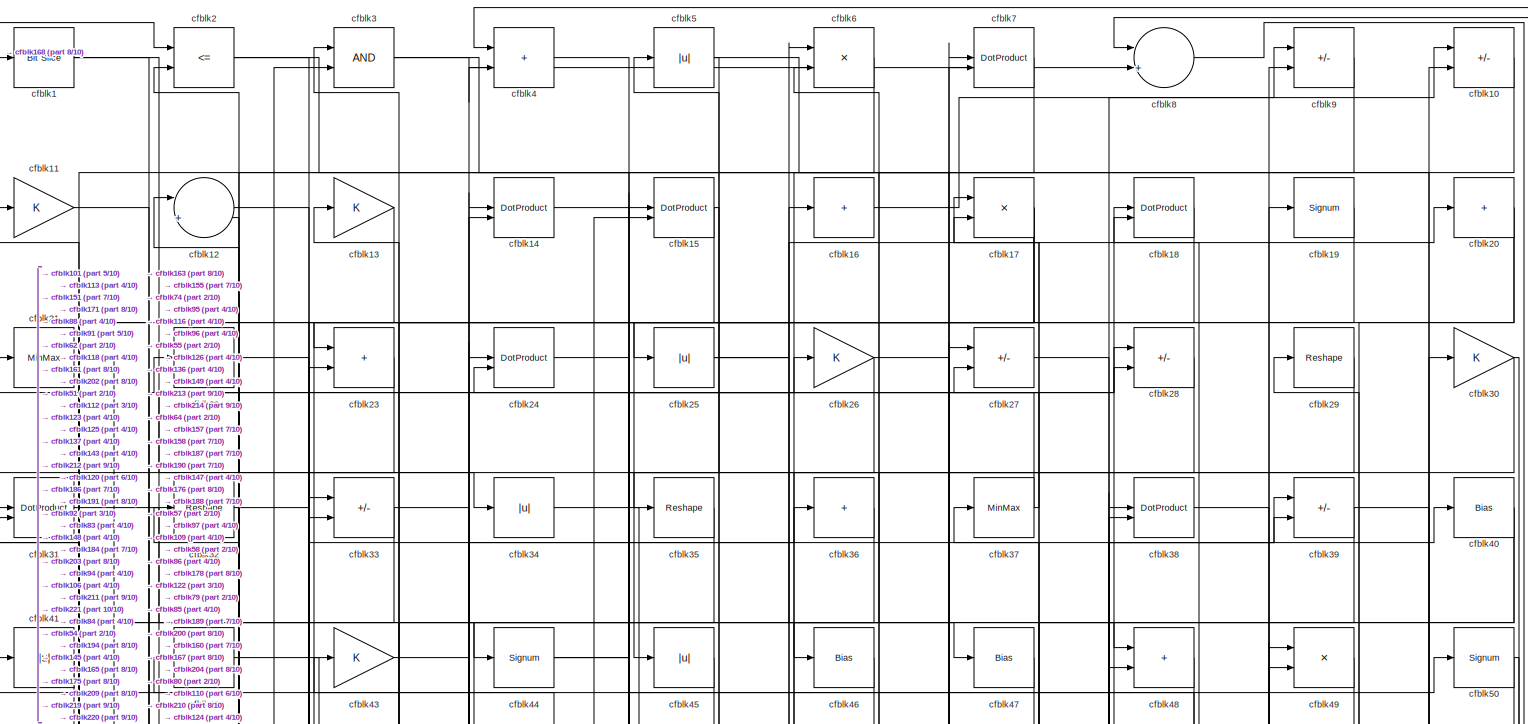
[diagram: root canvas - part 1/10, full width, top band]
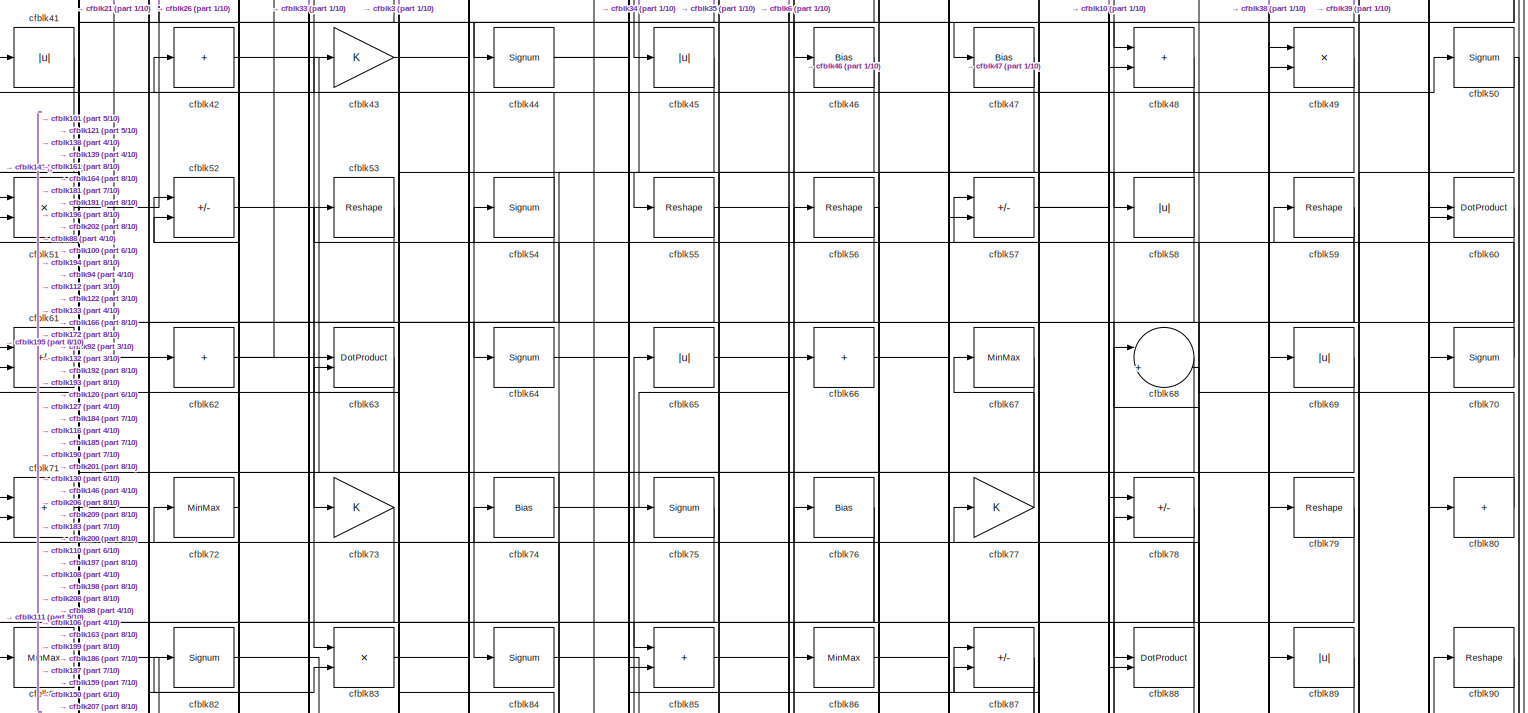
[diagram: root canvas - part 2/10, full width, top band]
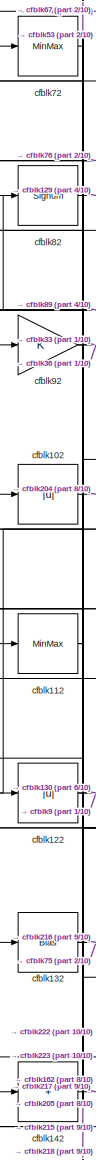
[diagram: root canvas - part 3/10, middle left region]
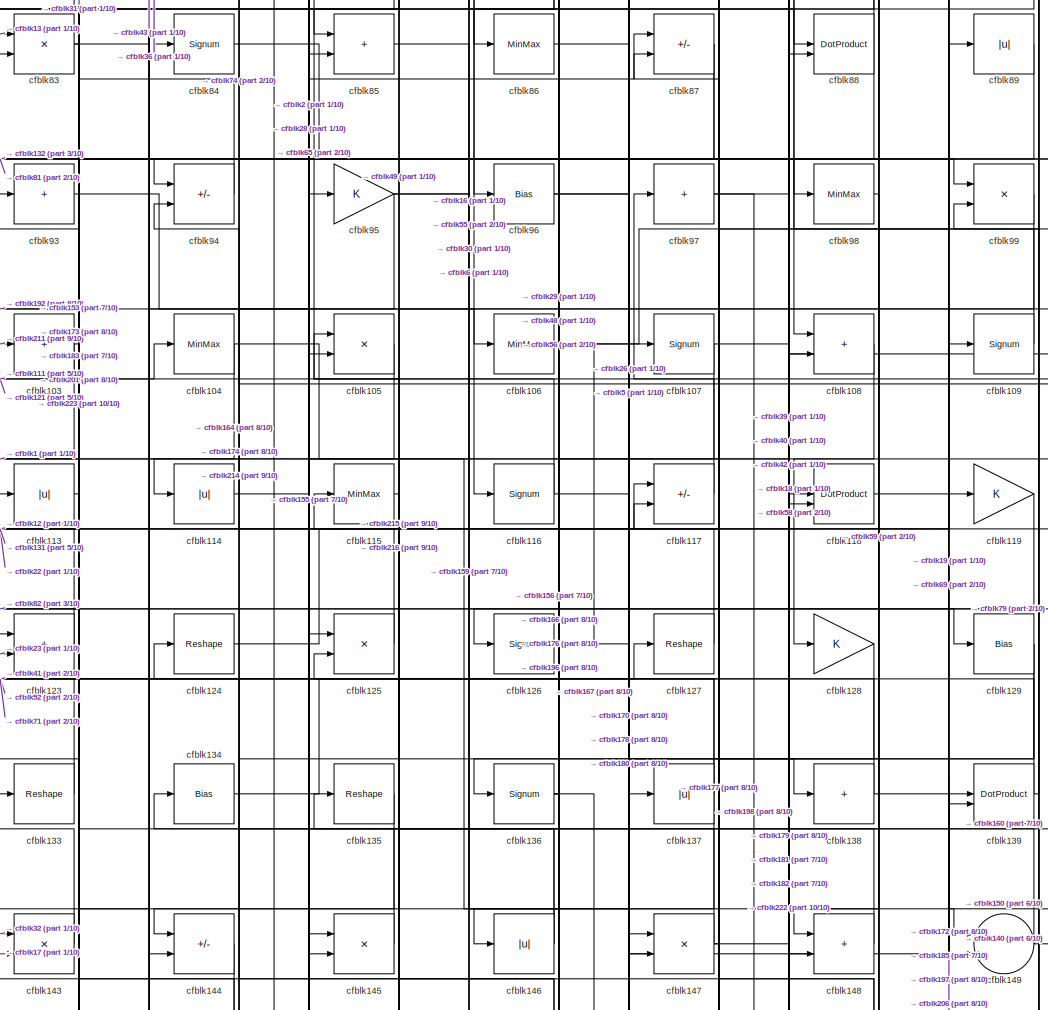
[diagram: root canvas - part 4/10, central region]
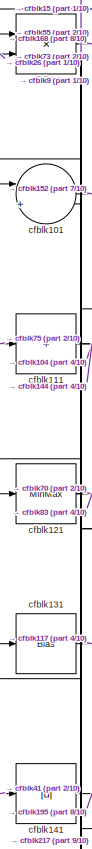
[diagram: root canvas - part 5/10, middle left region]
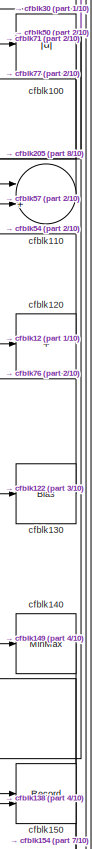
[diagram: root canvas - part 6/10, middle right region]
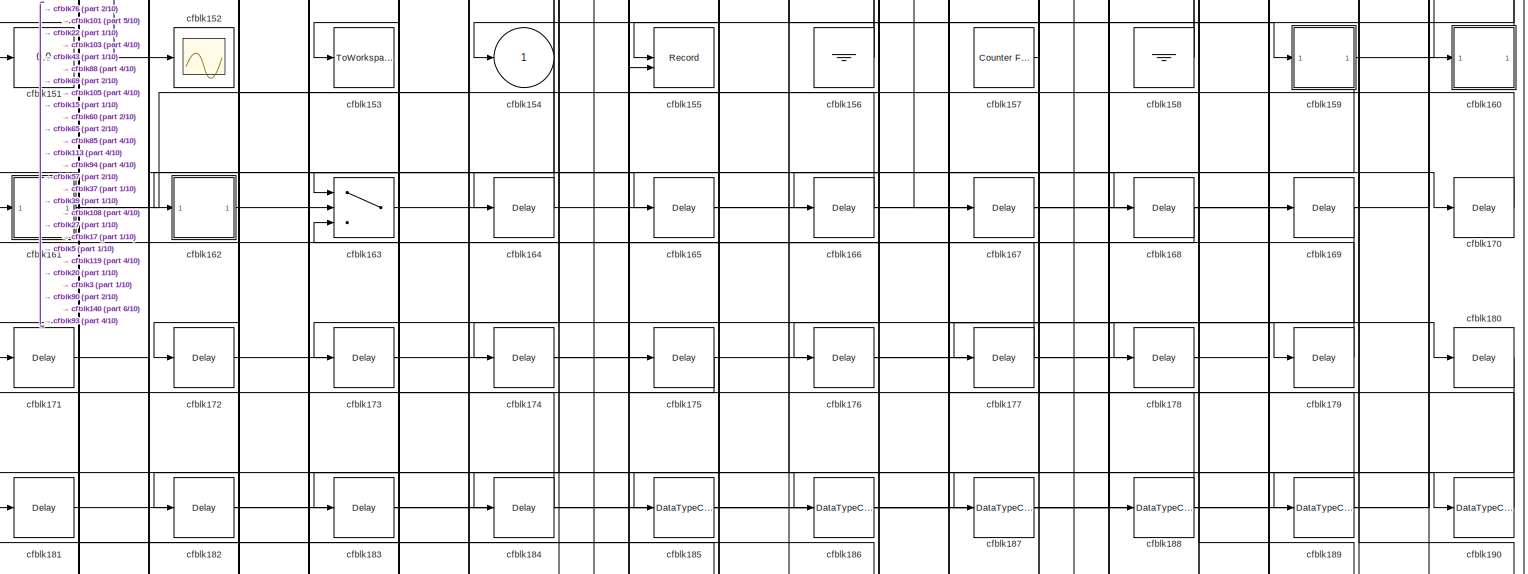
[diagram: root canvas - part 7/10, full width, bottom band]
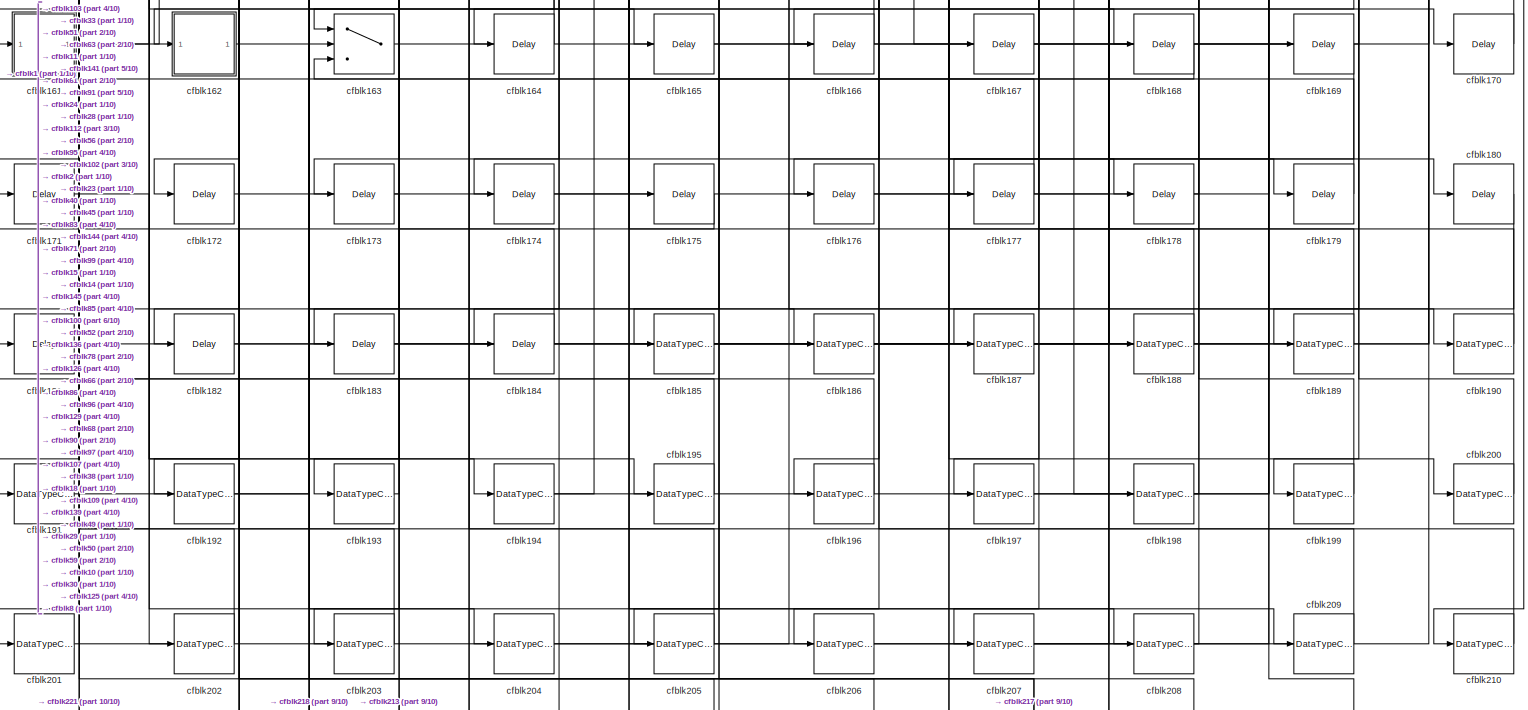
[diagram: root canvas - part 8/10, full width, bottom band]
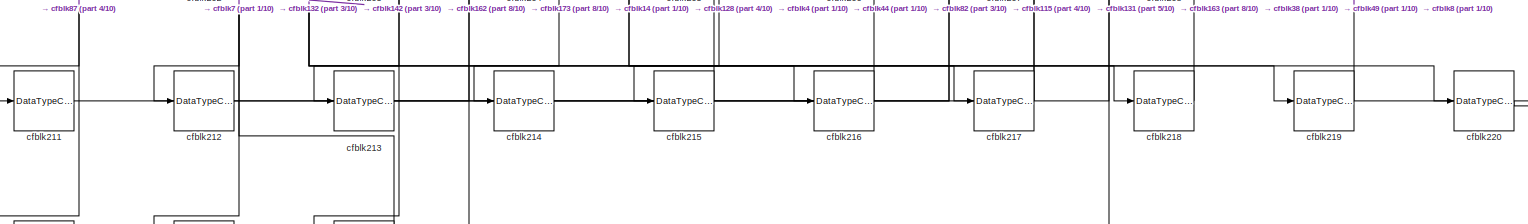
[diagram: root canvas - part 9/10, full width, bottom band]
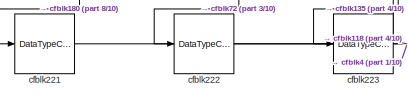
[diagram: root canvas - part 10/10, bottom left region]
MODEL slx_09137ad421bf
KIND model
CONFIG AbsTol = auto
CONFIG EnableMultiTasking = off
CONFIG FixedStep = auto
CONFIG MaxStep = auto
CONFIG MinStep = auto
CONFIG RelTol = 1e-3
CONFIG SampleTimeConstraint = Unconstrained
CONFIG SolverName = VariableStepAuto
CONFIG StartTime = 0.0
CONFIG StopTime = 10.0
BLOCK [Reference] cfblk1  REF=hdlsllib/Logic and Bit
Operations/Bit Slice
  SourceBlock = hdlsllib/Logic and Bit\nOperations/Bit Slice
  SourceType = Bit Slice
BLOCK [Sum] cfblk10
  IconShape = rectangular
  Inputs = +-
BLOCK [Abs] cfblk100
  SaturateOnIntegerOverflow = off
BLOCK [Sum] cfblk101
  Inputs = |++
BLOCK [Abs] cfblk102
  SaturateOnIntegerOverflow = off
BLOCK [Sum] cfblk103
  IconShape = rectangular
  Inputs = +
BLOCK [MinMax] cfblk104
BLOCK [Product] cfblk105
  Inputs = */
  RndMeth = Zero
  SaturateOnIntegerOverflow = on
BLOCK [MinMax] cfblk106
BLOCK [Signum] cfblk107
BLOCK [Sum] cfblk108
  IconShape = rectangular
BLOCK [Signum] cfblk109
BLOCK [Gain] cfblk11
BLOCK [Sum] cfblk110
  Inputs = |++
BLOCK [Sum] cfblk111
  IconShape = rectangular
  Inputs = +
BLOCK [MinMax] cfblk112
BLOCK [Abs] cfblk113
  SaturateOnIntegerOverflow = off
BLOCK [Abs] cfblk114
  SaturateOnIntegerOverflow = off
BLOCK [MinMax] cfblk115
BLOCK [Signum] cfblk116
BLOCK [Sum] cfblk117
  IconShape = rectangular
  Inputs = +-
BLOCK [DotProduct] cfblk118
  OutDataTypeStr = Inherit: Inherit via internal rule
BLOCK [Gain] cfblk119
BLOCK [Sum] cfblk12
  Inputs = |++
BLOCK [Sum] cfblk120
  IconShape = rectangular
  Inputs = +
BLOCK [MinMax] cfblk121
BLOCK [Abs] cfblk122
  SaturateOnIntegerOverflow = off
BLOCK [Sum] cfblk123
  IconShape = rectangular
BLOCK [Reshape] cfblk124
BLOCK [Product] cfblk125
  Inputs = */
  RndMeth = Zero
  SaturateOnIntegerOverflow = on
BLOCK [Signum] cfblk126
BLOCK [Reshape] cfblk127
BLOCK [Gain] cfblk128
BLOCK [Bias] cfblk129
  Bias = 0.0
  SaturateOnIntegerOverflow = off
BLOCK [Gain] cfblk13
BLOCK [Bias] cfblk130
  Bias = 0.0
  SaturateOnIntegerOverflow = off
BLOCK [Bias] cfblk131
  Bias = 0.0
  SaturateOnIntegerOverflow = off
BLOCK [Bias] cfblk132
  Bias = 0.0
  SaturateOnIntegerOverflow = off
BLOCK [Reshape] cfblk133
BLOCK [Bias] cfblk134
  Bias = 0.0
  SaturateOnIntegerOverflow = off
BLOCK [Reshape] cfblk135
BLOCK [Signum] cfblk136
BLOCK [Abs] cfblk137
  SaturateOnIntegerOverflow = off
BLOCK [Sum] cfblk138
  IconShape = rectangular
  Inputs = +
BLOCK [DotProduct] cfblk139
  OutDataTypeStr = Inherit: Inherit via internal rule
BLOCK [DotProduct] cfblk14
  OutDataTypeStr = Inherit: Inherit via internal rule
BLOCK [MinMax] cfblk140
BLOCK [Abs] cfblk141
  SaturateOnIntegerOverflow = off
BLOCK [Sum] cfblk142
  IconShape = rectangular
  Inputs = +
BLOCK [Product] cfblk143
  Inputs = */
  RndMeth = Zero
  SaturateOnIntegerOverflow = on
BLOCK [Sum] cfblk144
  IconShape = rectangular
  Inputs = +-
BLOCK [Product] cfblk145
  Inputs = */
  RndMeth = Zero
  SaturateOnIntegerOverflow = on
BLOCK [Abs] cfblk146
  SaturateOnIntegerOverflow = off
BLOCK [Product] cfblk147
  Inputs = */
  RndMeth = Zero
  SaturateOnIntegerOverflow = on
BLOCK [Sum] cfblk148
  IconShape = rectangular
BLOCK [Sum] cfblk149
  Inputs = |++
BLOCK [DotProduct] cfblk15
  OutDataTypeStr = Inherit: Inherit via internal rule
BLOCK [Record] cfblk150
  CompatibilityTag = XY
  FileSettingsInternal = {"entries":[{"content":{"excelSettings":{"content":{},"type":"Streamout.ExcelSettings"}},"type":"Streamout.FileSettingStorage","uuid":""}],"packageUris":["http:\/\/schema.mathworks.com\/mf0\/streamout_blocks\/R2020a"],"version":"1.0"}
  Layout = [1 1]
  SignalsInternal = {"entries":[{"content":{"signals":[{"content":{"blockPath":[],"dimensions":[1],"domain":"","lineColor":"#a2142f","plots":[1],"port":1,"signalID":5947,"signalName":"XY Graph:1"},"type":"RecordBlkView.Signal","uuid":""},{"content":{"blockPath":[],"dimensions":[1],"domain":"","lineColor":"#139fff","plots":[1],"port":2,"signalID":5950,"signalName":"XY Graph:2"},"type":"RecordBlkView.Signal","uuid":""}...<+146ch>
  VisualizationBindings = {"xyplotplugin":{"info":[{"series":[{"bindingParametersList":[{"parameter":"X-Axis","signalID":5947,"signalName":"XY Graph:1"},{"parameter":"Y-Axis","signalID":5950,"signalName":"XY Graph:2"}],"seriesID":10914}],"subplotID":1}]}}
  st = -1
BLOCK [Display] cfblk151
  Decimation = 1
BLOCK [Scope] cfblk152
  Floating = off
  NumInputPorts = 1
  ScopeSpecificationString = Simulink.scopes.TimeScopeBlockCfg('CurrentConfiguration', extmgr.ConfigurationSet(extmgr.Configuration('Core','General UI',true),extmgr.Configuration('Core','Source UI',true),extmgr.Configuration('Sources','WiredSimulink',true,'DataLoggingVariableName','ScopeData2','DataLoggingSaveFormat','Array','DataLoggingLimitDataPoints',true,'DataLoggingDecimation','1'),extmgr.Configuration('Visuals','Time Do...<+868ch>
BLOCK [ToWorkspace] cfblk153
  MaxDataPoints = inf
  SampleTime = -1
  SaveFormat = Timeseries
  VariableName = simout
BLOCK [Outport] cfblk154
  VectorParamsAs1DForOutWhenUnconnected = off
BLOCK [Record] cfblk155
  CompatibilityTag = XY
  FileSettingsInternal = {"entries":[{"content":{"excelSettings":{"content":{},"type":"Streamout.ExcelSettings"}},"type":"Streamout.FileSettingStorage","uuid":""}],"packageUris":["http:\/\/schema.mathworks.com\/mf0\/streamout_blocks\/R2020a"],"version":"1.0"}
  Layout = [1 1]
  SignalsInternal = {"entries":[{"content":{"signals":[{"content":{"blockPath":[],"dimensions":[1],"domain":"","lineColor":"#a2142f","plots":[1],"port":1,"signalID":5955,"signalName":"XY Graph:1"},"type":"RecordBlkView.Signal","uuid":""},{"content":{"blockPath":[],"dimensions":[1],"domain":"","lineColor":"#139fff","plots":[1],"port":2,"signalID":5958,"signalName":"XY Graph:2"},"type":"RecordBlkView.Signal","uuid":""}...<+146ch>
  VisualizationBindings = {"xyplotplugin":{"info":[{"series":[{"bindingParametersList":[{"parameter":"X-Axis","signalID":5955,"signalName":"XY Graph:1"},{"parameter":"Y-Axis","signalID":5958,"signalName":"XY Graph:2"}],"seriesID":54028}],"subplotID":1}]}}
  st = -1
BLOCK [Ground] cfblk156
BLOCK [Reference] cfblk157  REF=hdlsllib/Sources/Counter
Free-Running
  SourceBlock = hdlsllib/Sources/Counter\nFree-Running
  SourceType = Counter Free-Running
BLOCK [Ground] cfblk158
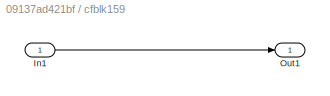
BLOCK [SubSystem] cfblk159
  LibrarySourceBlock = hdlsllib/Ports &\nSubsystems/Subsystem
BLOCK [Inport] cfblk159/In1
BLOCK [Outport] cfblk159/Out1
BLOCK [Sum] cfblk16
  IconShape = rectangular
  Inputs = +
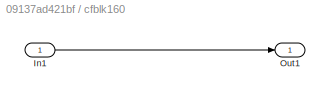
BLOCK [SubSystem] cfblk160
  LibrarySourceBlock = hdlsllib/Ports &\nSubsystems/Subsystem
BLOCK [Inport] cfblk160/In1
BLOCK [Outport] cfblk160/Out1
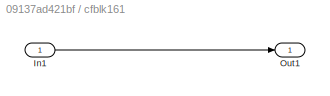
BLOCK [SubSystem] cfblk161
  LibrarySourceBlock = hdlsllib/Ports &\nSubsystems/Subsystem
BLOCK [Inport] cfblk161/In1
BLOCK [Outport] cfblk161/Out1
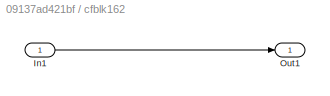
BLOCK [SubSystem] cfblk162
  LibrarySourceBlock = hdlsllib/Ports &\nSubsystems/Subsystem
BLOCK [Inport] cfblk162/In1
BLOCK [Outport] cfblk162/Out1
BLOCK [Switch] cfblk163
  InputSameDT = off
  SaturateOnIntegerOverflow = off
BLOCK [Delay] cfblk164
  InputPortMap = u0
  SampleTime = 1
BLOCK [Delay] cfblk165
  InputPortMap = u0
  SampleTime = 1
BLOCK [Delay] cfblk166
  InputPortMap = u0
  SampleTime = 1
BLOCK [Delay] cfblk167
  InputPortMap = u0
  SampleTime = 1
BLOCK [Delay] cfblk168
  InputPortMap = u0
  SampleTime = 1
BLOCK [Delay] cfblk169
  InputPortMap = u0
  SampleTime = 1
BLOCK [Product] cfblk17
  Inputs = */
  RndMeth = Zero
  SaturateOnIntegerOverflow = on
BLOCK [Delay] cfblk170
  InputPortMap = u0
  SampleTime = 1
BLOCK [Delay] cfblk171
  InputPortMap = u0
  SampleTime = 1
BLOCK [Delay] cfblk172
  InputPortMap = u0
  SampleTime = 1
BLOCK [Delay] cfblk173
  InputPortMap = u0
  SampleTime = 1
BLOCK [Delay] cfblk174
  InputPortMap = u0
  SampleTime = 1
BLOCK [Delay] cfblk175
  InputPortMap = u0
  SampleTime = 1
BLOCK [Delay] cfblk176
  InputPortMap = u0
  SampleTime = 1
BLOCK [Delay] cfblk177
  InputPortMap = u0
  SampleTime = 1
BLOCK [Delay] cfblk178
  InputPortMap = u0
  SampleTime = 1
BLOCK [Delay] cfblk179
  InputPortMap = u0
  SampleTime = 1
BLOCK [DotProduct] cfblk18
  OutDataTypeStr = Inherit: Inherit via internal rule
BLOCK [Delay] cfblk180
  InputPortMap = u0
  SampleTime = 1
BLOCK [Delay] cfblk181
  InputPortMap = u0
  SampleTime = 1
BLOCK [Delay] cfblk182
  InputPortMap = u0
  SampleTime = 1
BLOCK [Delay] cfblk183
  InputPortMap = u0
  SampleTime = 1
BLOCK [Delay] cfblk184
  InputPortMap = u0
  SampleTime = 1
BLOCK [DataTypeConversion] cfblk185
  OutDataTypeStr = uint8
  RndMeth = Floor
  SaturateOnIntegerOverflow = off
BLOCK [DataTypeConversion] cfblk186
  OutDataTypeStr = uint8
  RndMeth = Floor
  SaturateOnIntegerOverflow = off
BLOCK [DataTypeConversion] cfblk187
  OutDataTypeStr = uint8
  RndMeth = Floor
  SaturateOnIntegerOverflow = off
BLOCK [DataTypeConversion] cfblk188
  OutDataTypeStr = uint8
  RndMeth = Floor
  SaturateOnIntegerOverflow = off
BLOCK [DataTypeConversion] cfblk189
  OutDataTypeStr = uint8
  RndMeth = Floor
  SaturateOnIntegerOverflow = off
BLOCK [Signum] cfblk19
BLOCK [DataTypeConversion] cfblk190
  OutDataTypeStr = uint8
  RndMeth = Floor
  SaturateOnIntegerOverflow = off
BLOCK [DataTypeConversion] cfblk191
  OutDataTypeStr = uint8
  RndMeth = Floor
  SaturateOnIntegerOverflow = off
BLOCK [DataTypeConversion] cfblk192
  OutDataTypeStr = uint8
  RndMeth = Floor
  SaturateOnIntegerOverflow = off
BLOCK [DataTypeConversion] cfblk193
  OutDataTypeStr = uint8
  RndMeth = Floor
  SaturateOnIntegerOverflow = off
BLOCK [DataTypeConversion] cfblk194
  RndMeth = Floor
  SaturateOnIntegerOverflow = off
BLOCK [DataTypeConversion] cfblk195
  OutDataTypeStr = uint8
  RndMeth = Floor
  SaturateOnIntegerOverflow = off
BLOCK [DataTypeConversion] cfblk196
  OutDataTypeStr = uint8
  RndMeth = Floor
  SaturateOnIntegerOverflow = off
BLOCK [DataTypeConversion] cfblk197
  OutDataTypeStr = uint8
  RndMeth = Floor
  SaturateOnIntegerOverflow = off
BLOCK [DataTypeConversion] cfblk198
  OutDataTypeStr = uint8
  RndMeth = Floor
  SaturateOnIntegerOverflow = off
BLOCK [DataTypeConversion] cfblk199
  OutDataTypeStr = uint8
  RndMeth = Floor
  SaturateOnIntegerOverflow = off
BLOCK [RelationalOperator] cfblk2
  InputSameDT = off
  Operator = <=
  OutDataTypeStr = boolean
BLOCK [Sum] cfblk20
  IconShape = rectangular
  Inputs = +
BLOCK [DataTypeConversion] cfblk200
  OutDataTypeStr = uint8
  RndMeth = Floor
  SaturateOnIntegerOverflow = off
BLOCK [DataTypeConversion] cfblk201
  OutDataTypeStr = uint8
  RndMeth = Floor
  SaturateOnIntegerOverflow = off
BLOCK [DataTypeConversion] cfblk202
  OutDataTypeStr = uint8
  RndMeth = Floor
  SaturateOnIntegerOverflow = off
BLOCK [DataTypeConversion] cfblk203
  OutDataTypeStr = uint8
  RndMeth = Floor
  SaturateOnIntegerOverflow = off
BLOCK [DataTypeConversion] cfblk204
  OutDataTypeStr = uint8
  RndMeth = Floor
  SaturateOnIntegerOverflow = off
BLOCK [DataTypeConversion] cfblk205
  OutDataTypeStr = uint8
  RndMeth = Floor
  SaturateOnIntegerOverflow = off
BLOCK [DataTypeConversion] cfblk206
  OutDataTypeStr = uint8
  RndMeth = Floor
  SaturateOnIntegerOverflow = off
BLOCK [DataTypeConversion] cfblk207
  OutDataTypeStr = uint8
  RndMeth = Floor
  SaturateOnIntegerOverflow = off
BLOCK [DataTypeConversion] cfblk208
  OutDataTypeStr = uint8
  RndMeth = Floor
  SaturateOnIntegerOverflow = off
BLOCK [DataTypeConversion] cfblk209
  OutDataTypeStr = uint8
  RndMeth = Floor
  SaturateOnIntegerOverflow = off
BLOCK [MinMax] cfblk21
BLOCK [DataTypeConversion] cfblk210
  OutDataTypeStr = uint8
  RndMeth = Floor
  SaturateOnIntegerOverflow = off
BLOCK [DataTypeConversion] cfblk211
  OutDataTypeStr = uint8
  RndMeth = Floor
  SaturateOnIntegerOverflow = off
BLOCK [DataTypeConversion] cfblk212
  OutDataTypeStr = uint8
  RndMeth = Floor
  SaturateOnIntegerOverflow = off
BLOCK [DataTypeConversion] cfblk213
  OutDataTypeStr = uint8
  RndMeth = Floor
  SaturateOnIntegerOverflow = off
BLOCK [DataTypeConversion] cfblk214
  OutDataTypeStr = uint8
  RndMeth = Floor
  SaturateOnIntegerOverflow = off
BLOCK [DataTypeConversion] cfblk215
  OutDataTypeStr = uint8
  RndMeth = Floor
  SaturateOnIntegerOverflow = off
BLOCK [DataTypeConversion] cfblk216
  OutDataTypeStr = uint8
  RndMeth = Floor
  SaturateOnIntegerOverflow = off
BLOCK [DataTypeConversion] cfblk217
  RndMeth = Floor
  SaturateOnIntegerOverflow = off
BLOCK [DataTypeConversion] cfblk218
  OutDataTypeStr = uint8
  RndMeth = Floor
  SaturateOnIntegerOverflow = off
BLOCK [DataTypeConversion] cfblk219
  RndMeth = Floor
  SaturateOnIntegerOverflow = off
BLOCK [MinMax] cfblk22
BLOCK [DataTypeConversion] cfblk220
  OutDataTypeStr = uint8
  RndMeth = Floor
  SaturateOnIntegerOverflow = off
BLOCK [DataTypeConversion] cfblk221
  OutDataTypeStr = uint8
  RndMeth = Floor
  SaturateOnIntegerOverflow = off
BLOCK [DataTypeConversion] cfblk222
  OutDataTypeStr = uint8
  RndMeth = Floor
  SaturateOnIntegerOverflow = off
BLOCK [DataTypeConversion] cfblk223
  OutDataTypeStr = uint8
  RndMeth = Floor
  SaturateOnIntegerOverflow = off
BLOCK [Sum] cfblk23
  IconShape = rectangular
BLOCK [DotProduct] cfblk24
  OutDataTypeStr = Inherit: Inherit via internal rule
BLOCK [Abs] cfblk25
  SaturateOnIntegerOverflow = off
BLOCK [Gain] cfblk26
BLOCK [Sum] cfblk27
  IconShape = rectangular
  Inputs = +-
BLOCK [Sum] cfblk28
  IconShape = rectangular
  Inputs = +-
BLOCK [Reshape] cfblk29
BLOCK [Logic] cfblk3
  AllPortsSameDT = off
  OutDataTypeStr = boolean
BLOCK [Gain] cfblk30
BLOCK [DotProduct] cfblk31
  OutDataTypeStr = Inherit: Inherit via internal rule
BLOCK [Reshape] cfblk32
BLOCK [Sum] cfblk33
  IconShape = rectangular
  Inputs = +-
BLOCK [Abs] cfblk34
  SaturateOnIntegerOverflow = off
BLOCK [Reshape] cfblk35
BLOCK [Sum] cfblk36
  IconShape = rectangular
  Inputs = +
BLOCK [MinMax] cfblk37
BLOCK [DotProduct] cfblk38
  OutDataTypeStr = Inherit: Inherit via internal rule
BLOCK [Sum] cfblk39
  IconShape = rectangular
  Inputs = +-
BLOCK [Sum] cfblk4
  IconShape = rectangular
BLOCK [Bias] cfblk40
  Bias = 0.0
  SaturateOnIntegerOverflow = off
BLOCK [Abs] cfblk41
  SaturateOnIntegerOverflow = off
BLOCK [Sum] cfblk42
  IconShape = rectangular
  Inputs = +
BLOCK [Gain] cfblk43
BLOCK [Signum] cfblk44
BLOCK [Abs] cfblk45
  SaturateOnIntegerOverflow = off
BLOCK [Bias] cfblk46
  Bias = 0.0
  SaturateOnIntegerOverflow = off
BLOCK [Bias] cfblk47
  Bias = 0.0
  SaturateOnIntegerOverflow = off
BLOCK [Sum] cfblk48
  IconShape = rectangular
BLOCK [Product] cfblk49
  Inputs = */
  RndMeth = Zero
  SaturateOnIntegerOverflow = on
BLOCK [Abs] cfblk5
  SaturateOnIntegerOverflow = off
BLOCK [Signum] cfblk50
BLOCK [Product] cfblk51
  Inputs = */
  RndMeth = Zero
  SaturateOnIntegerOverflow = on
BLOCK [Sum] cfblk52
  IconShape = rectangular
  Inputs = +-
BLOCK [Reshape] cfblk53
BLOCK [Signum] cfblk54
BLOCK [Reshape] cfblk55
BLOCK [Reshape] cfblk56
BLOCK [Sum] cfblk57
  IconShape = rectangular
  Inputs = +-
BLOCK [Abs] cfblk58
  SaturateOnIntegerOverflow = off
BLOCK [Reshape] cfblk59
BLOCK [Product] cfblk6
  Inputs = */
  RndMeth = Zero
  SaturateOnIntegerOverflow = on
BLOCK [DotProduct] cfblk60
  OutDataTypeStr = Inherit: Inherit via internal rule
BLOCK [Sum] cfblk61
  IconShape = rectangular
  Inputs = +-
BLOCK [Sum] cfblk62
  IconShape = rectangular
  Inputs = +
BLOCK [DotProduct] cfblk63
  OutDataTypeStr = Inherit: Inherit via internal rule
BLOCK [Signum] cfblk64
BLOCK [Abs] cfblk65
  SaturateOnIntegerOverflow = off
BLOCK [Sum] cfblk66
  IconShape = rectangular
  Inputs = +
BLOCK [MinMax] cfblk67
BLOCK [Sum] cfblk68
  Inputs = |++
BLOCK [Abs] cfblk69
  SaturateOnIntegerOverflow = off
BLOCK [DotProduct] cfblk7
  OutDataTypeStr = Inherit: Inherit via internal rule
BLOCK [Signum] cfblk70
BLOCK [Sum] cfblk71
  IconShape = rectangular
BLOCK [MinMax] cfblk72
BLOCK [Gain] cfblk73
BLOCK [Bias] cfblk74
  Bias = 0.0
  SaturateOnIntegerOverflow = off
BLOCK [Signum] cfblk75
BLOCK [Bias] cfblk76
  Bias = 0.0
  SaturateOnIntegerOverflow = off
BLOCK [Gain] cfblk77
BLOCK [Sum] cfblk78
  IconShape = rectangular
  Inputs = +-
BLOCK [Reshape] cfblk79
BLOCK [Sum] cfblk8
  Inputs = |++
BLOCK [Sum] cfblk80
  IconShape = rectangular
  Inputs = +
BLOCK [MinMax] cfblk81
BLOCK [Signum] cfblk82
BLOCK [Product] cfblk83
  Inputs = */
  RndMeth = Zero
  SaturateOnIntegerOverflow = on
BLOCK [Signum] cfblk84
BLOCK [Sum] cfblk85
  IconShape = rectangular
BLOCK [MinMax] cfblk86
BLOCK [Sum] cfblk87
  IconShape = rectangular
  Inputs = +-
BLOCK [DotProduct] cfblk88
  OutDataTypeStr = Inherit: Inherit via internal rule
BLOCK [Abs] cfblk89
  SaturateOnIntegerOverflow = off
BLOCK [Sum] cfblk9
  IconShape = rectangular
  Inputs = +-
BLOCK [Reshape] cfblk90
BLOCK [Product] cfblk91
  Inputs = */
  RndMeth = Zero
  SaturateOnIntegerOverflow = on
BLOCK [Gain] cfblk92
BLOCK [Sum] cfblk93
  IconShape = rectangular
  Inputs = +
BLOCK [Sum] cfblk94
  IconShape = rectangular
  Inputs = +-
BLOCK [Gain] cfblk95
BLOCK [Bias] cfblk96
  Bias = 0.0
  SaturateOnIntegerOverflow = off
BLOCK [Sum] cfblk97
  IconShape = rectangular
  Inputs = +
BLOCK [MinMax] cfblk98
BLOCK [Product] cfblk99
  Inputs = */
  RndMeth = Zero
  SaturateOnIntegerOverflow = on
LINE cfblk100:1 -> cfblk205:1
LINE cfblk101:1 -> cfblk152:1
LINE cfblk102:1 -> cfblk204:1
NET cfblk103:1 -> cfblk153:1, cfblk201:1
NET cfblk104:1 -> cfblk114:1, cfblk149:1
LINE cfblk105:1 -> cfblk155:2
LINE cfblk106:1 -> cfblk69:1
NET cfblk107:1 -> cfblk179:1, cfblk196:1
LINE cfblk108:1 -> cfblk128:1
LINE cfblk109:1 -> cfblk18:1
LINE cfblk10:1 -> cfblk46:1
LINE cfblk110:1 -> cfblk77:1
NET cfblk111:1 -> cfblk104:1, cfblk144:2
NET cfblk112:1 -> cfblk162:1, cfblk32:1
LINE cfblk113:1 -> cfblk31:1
LINE cfblk114:1 -> cfblk87:2
LINE cfblk115:1 -> cfblk215:1
NET cfblk116:1 -> cfblk138:1, cfblk65:1
LINE cfblk117:1 -> cfblk97:1
LINE cfblk118:1 -> cfblk89:1
LINE cfblk119:1 -> cfblk136:1
LINE cfblk11:1 -> cfblk202:1
LINE cfblk120:1 -> cfblk54:1
NET cfblk121:1 -> cfblk70:1, cfblk83:2
NET cfblk122:1 -> cfblk130:1, cfblk9:2
LINE cfblk123:1 -> cfblk22:1
LINE cfblk124:1 -> cfblk19:1
LINE cfblk125:1 -> cfblk12:1
NET cfblk126:1 -> cfblk107:1, cfblk178:1
LINE cfblk127:1 -> cfblk74:1
LINE cfblk128:1 -> cfblk214:1
NET cfblk129:1 -> cfblk176:1, cfblk177:1
LINE cfblk12:1 -> cfblk120:1
LINE cfblk130:1 -> cfblk76:1
LINE cfblk131:1 -> cfblk117:1
NET cfblk132:1 -> cfblk216:1, cfblk75:1
LINE cfblk133:1 -> cfblk52:1
LINE cfblk134:1 -> cfblk127:1
LINE cfblk135:1 -> cfblk223:1
NET cfblk136:1 -> cfblk166:1, cfblk167:1, cfblk6:2
NET cfblk137:1 -> cfblk144:1, cfblk2:2, cfblk42:1
NET cfblk138:1 -> cfblk150:2, cfblk41:1
NET cfblk139:1 -> cfblk71:1, cfblk99:2
LINE cfblk13:1 -> cfblk83:1
LINE cfblk140:1 -> cfblk154:1
LINE cfblk141:1 -> cfblk195:1
LINE cfblk142:1 -> cfblk217:1
LINE cfblk143:1 -> cfblk12:2
LINE cfblk144:1 -> cfblk164:1
LINE cfblk145:1 -> cfblk135:1
NET cfblk146:1 -> cfblk105:1, cfblk124:1
NET cfblk147:1 -> cfblk117:2, cfblk134:1, cfblk39:2
LINE cfblk148:1 -> cfblk125:2
NET cfblk149:1 -> cfblk140:1, cfblk87:1
LINE cfblk14:1 -> cfblk209:1
NET cfblk156:1 -> cfblk113:1, cfblk94:2
LINE cfblk157:1 -> cfblk37:1
NET cfblk158:1 -> cfblk17:2, cfblk5:1
LINE cfblk159/In1:1 -> cfblk159/Out1:1
NET cfblk159:1 -> cfblk182:1, cfblk90:1
NET cfblk15:1 -> cfblk155:1, cfblk91:1
LINE cfblk160/In1:1 -> cfblk160/Out1:1
LINE cfblk160:1 -> cfblk93:1
LINE cfblk161/In1:1 -> cfblk161/Out1:1
NET cfblk161:1 -> cfblk24:1, cfblk28:1
LINE cfblk162/In1:1 -> cfblk162/Out1:1
LINE cfblk162:1 -> cfblk218:1
LINE cfblk163:1 -> cfblk59:1
LINE cfblk164:1 -> cfblk71:2
LINE cfblk165:1 -> cfblk49:2
LINE cfblk166:1 -> cfblk52:2
LINE cfblk167:1 -> cfblk10:2
LINE cfblk168:1 -> cfblk1:1
LINE cfblk169:1 -> cfblk193:1
LINE cfblk16:1 -> cfblk9:1
LINE cfblk170:1 -> cfblk125:1
LINE cfblk171:1 -> cfblk208:1
LINE cfblk172:1 -> cfblk139:2
LINE cfblk173:1 -> cfblk213:1
LINE cfblk174:1 -> cfblk85:2
LINE cfblk175:1 -> cfblk2:1
LINE cfblk176:1 -> cfblk38:1
LINE cfblk177:1 -> cfblk163:3
LINE cfblk178:1 -> cfblk18:2
LINE cfblk179:1 -> cfblk145:1
NET cfblk17:1 -> cfblk143:2, cfblk23:1, cfblk35:1
LINE cfblk180:1 -> cfblk221:1
LINE cfblk181:1 -> cfblk88:2
LINE cfblk182:1 -> cfblk108:2
LINE cfblk183:1 -> cfblk57:2
LINE cfblk184:1 -> cfblk43:1
LINE cfblk185:1 -> cfblk119:1
LINE cfblk186:1 -> cfblk60:1
LINE cfblk187:1 -> cfblk60:2
LINE cfblk188:1 -> cfblk15:1
LINE cfblk189:1 -> cfblk27:1
LINE cfblk18:1 -> cfblk45:1
LINE cfblk190:1 -> cfblk27:2
LINE cfblk191:1 -> cfblk23:2
LINE cfblk192:1 -> cfblk63:1
LINE cfblk193:1 -> cfblk63:2
NET cfblk194:1 -> cfblk15:2, cfblk169:1
LINE cfblk195:1 -> cfblk61:1
LINE cfblk196:1 -> cfblk61:2
LINE cfblk197:1 -> cfblk109:1
LINE cfblk198:1 -> cfblk68:1
LINE cfblk199:1 -> cfblk68:2
LINE cfblk19:1 -> cfblk123:1
NET cfblk1:1 -> cfblk118:2, cfblk34:1
LINE cfblk200:1 -> cfblk29:1
LINE cfblk201:1 -> cfblk66:1
LINE cfblk202:1 -> cfblk51:2
LINE cfblk203:1 -> cfblk11:1
LINE cfblk204:1 -> cfblk30:1
LINE cfblk205:1 -> cfblk102:1
LINE cfblk206:1 -> cfblk139:1
LINE cfblk207:1 -> cfblk78:1
LINE cfblk208:1 -> cfblk78:2
LINE cfblk209:1 -> cfblk56:1
NET cfblk20:1 -> cfblk151:1, cfblk189:1
LINE cfblk210:1 -> cfblk14:1
LINE cfblk211:1 -> cfblk14:2
LINE cfblk212:1 -> cfblk38:2
LINE cfblk213:1 -> cfblk7:1
LINE cfblk214:1 -> cfblk7:2
LINE cfblk215:1 -> cfblk82:1
LINE cfblk216:1 -> cfblk115:1
NET cfblk217:1 -> cfblk131:1, cfblk163:2
LINE cfblk218:1 -> cfblk142:1
NET cfblk219:1 -> cfblk49:1, cfblk8:1
LINE cfblk21:1 -> cfblk62:1
LINE cfblk220:1 -> cfblk4:1
LINE cfblk221:1 -> cfblk4:2
LINE cfblk222:1 -> cfblk118:1
LINE cfblk223:1 -> cfblk72:1
LINE cfblk22:1 -> cfblk186:1
LINE cfblk23:1 -> cfblk123:2
LINE cfblk24:1 -> cfblk175:1
NET cfblk25:1 -> cfblk20:1, cfblk47:1
NET cfblk26:1 -> cfblk149:2, cfblk91:2
LINE cfblk27:1 -> cfblk188:1
LINE cfblk28:1 -> cfblk145:2
LINE cfblk29:1 -> cfblk126:1
NET cfblk2:1 -> cfblk165:1, cfblk95:1
NET cfblk30:1 -> cfblk110:1, cfblk96:1
LINE cfblk31:1 -> cfblk44:1
LINE cfblk32:1 -> cfblk143:1
NET cfblk33:1 -> cfblk171:1, cfblk48:1
LINE cfblk34:1 -> cfblk58:1
LINE cfblk35:1 -> cfblk51:1
LINE cfblk36:1 -> cfblk84:1
NET cfblk37:1 -> cfblk17:1, cfblk24:2
LINE cfblk38:1 -> cfblk79:1
NET cfblk39:1 -> cfblk187:1, cfblk80:1
NET cfblk3:1 -> cfblk160:1, cfblk8:2
NET cfblk40:1 -> cfblk203:1, cfblk48:2
LINE cfblk41:1 -> cfblk141:1
LINE cfblk42:1 -> cfblk148:2
LINE cfblk43:1 -> cfblk106:1
NET cfblk44:1 -> cfblk220:1, cfblk28:2
LINE cfblk45:1 -> cfblk163:1
LINE cfblk46:1 -> cfblk55:1
LINE cfblk47:1 -> cfblk64:1
LINE cfblk48:1 -> cfblk86:1
LINE cfblk49:1 -> cfblk85:1
LINE cfblk4:1 -> cfblk219:1
NET cfblk50:1 -> cfblk150:1, cfblk199:1
LINE cfblk51:1 -> cfblk26:1
LINE cfblk52:1 -> cfblk73:1
LINE cfblk53:1 -> cfblk92:1
NET cfblk54:1 -> cfblk21:1, cfblk81:1
NET cfblk55:1 -> cfblk101:2, cfblk88:1
NET cfblk56:1 -> cfblk146:1, cfblk172:1
NET cfblk57:1 -> cfblk10:1, cfblk110:2
NET cfblk58:1 -> cfblk108:1, cfblk3:1
NET cfblk59:1 -> cfblk161:1, cfblk98:1
NET cfblk5:1 -> cfblk147:1, cfblk25:1
LINE cfblk60:1 -> cfblk185:1
LINE cfblk61:1 -> cfblk194:1
NET cfblk62:1 -> cfblk33:2, cfblk3:2
LINE cfblk63:1 -> cfblk191:1
LINE cfblk64:1 -> cfblk50:1
LINE cfblk65:1 -> cfblk190:1
LINE cfblk66:1 -> cfblk200:1
LINE cfblk67:1 -> cfblk122:1
LINE cfblk68:1 -> cfblk197:1
LINE cfblk69:1 -> cfblk184:1
LINE cfblk6:1 -> cfblk116:1
LINE cfblk70:1 -> cfblk57:1
LINE cfblk71:1 -> cfblk100:1
LINE cfblk72:1 -> cfblk222:1
LINE cfblk73:1 -> cfblk121:1
LINE cfblk74:1 -> cfblk6:1
LINE cfblk75:1 -> cfblk111:1
NET cfblk76:1 -> cfblk112:1, cfblk181:1
LINE cfblk77:1 -> cfblk67:1
LINE cfblk78:1 -> cfblk206:1
LINE cfblk79:1 -> cfblk133:1
LINE cfblk7:1 -> cfblk212:1
LINE cfblk80:1 -> cfblk53:1
LINE cfblk81:1 -> cfblk94:1
LINE cfblk82:1 -> cfblk129:1
NET cfblk83:1 -> cfblk173:1, cfblk39:1
LINE cfblk84:1 -> cfblk99:1
LINE cfblk85:1 -> cfblk159:1
LINE cfblk86:1 -> cfblk170:1
NET cfblk87:1 -> cfblk103:1, cfblk211:1
NET cfblk88:1 -> cfblk183:1, cfblk31:2
LINE cfblk89:1 -> cfblk132:1
LINE cfblk8:1 -> cfblk210:1
LINE cfblk90:1 -> cfblk207:1
LINE cfblk91:1 -> cfblk168:1
NET cfblk92:1 -> cfblk33:1, cfblk36:1
LINE cfblk93:1 -> cfblk105:2
LINE cfblk94:1 -> cfblk13:1
NET cfblk95:1 -> cfblk147:2, cfblk16:1, cfblk192:1
NET cfblk96:1 -> cfblk137:1, cfblk180:1
NET cfblk97:1 -> cfblk198:1, cfblk40:1
LINE cfblk98:1 -> cfblk148:1
LINE cfblk99:1 -> cfblk174:1
LINE cfblk9:1 -> cfblk101:1
note: NET lines group one-source signal fan-out (src -> all destinations, sorted); 1:1 wires keep LINE
